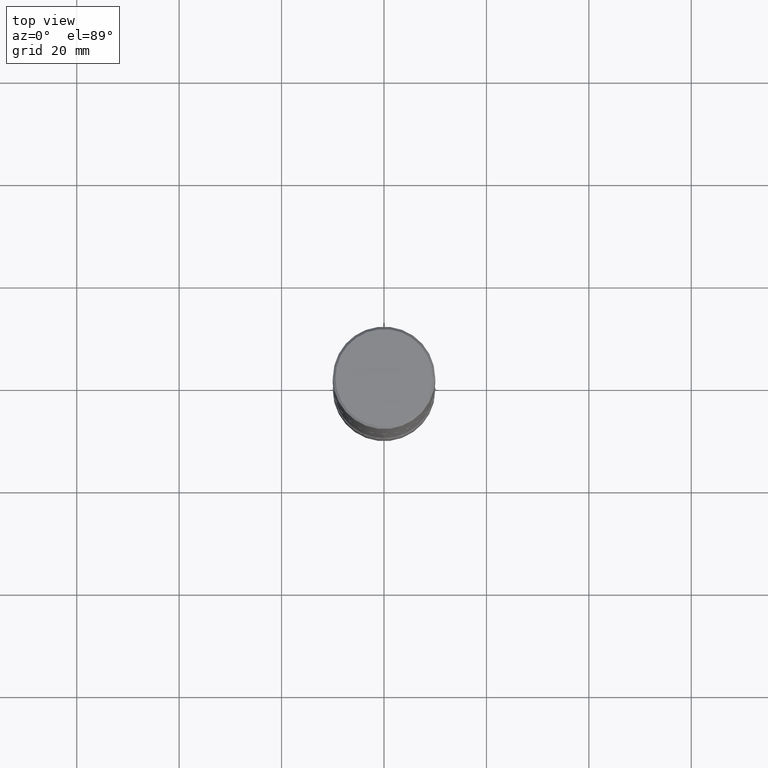
[diagram: clean part render]
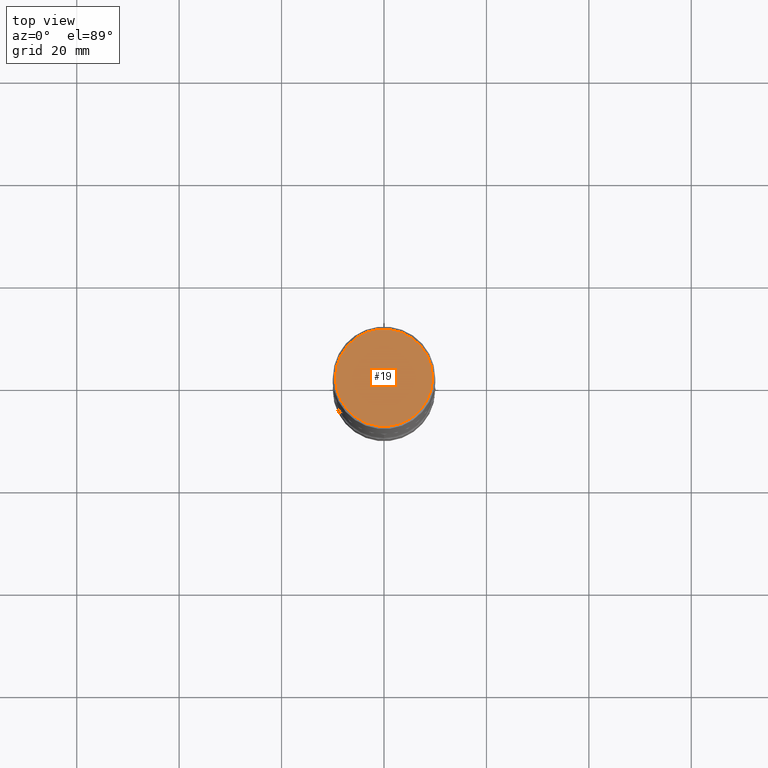
[diagram: same view with one face highlighted and labeled with its STEP entity id]
A machine part, top view. The second image highlights one B-rep face of the part: STEP entity #19.
In plain terms, the highlighted planar face has unit normal (0, -0, -1).
Its self-contained STEP definition (entity closure, byte-faithful):
#1 = AXIS2_PLACEMENT_3D ( 'NONE', #375, #271, #474 ) ;
#18 = CARTESIAN_POINT ( 'NONE',  ( -2.087702828670439639E-46, 2.980686340760894400E-32, 8.537024980200822558E-18 ) ) ;
#19 = ADVANCED_FACE ( 'NONE', ( #399 ), #501, .F. ) ;
#24 = EDGE_CURVE ( 'NONE', #26, #469, #70, .T. ) ;
#26 = VERTEX_POINT ( 'NONE', #142 ) ;
#70 = CIRCLE ( 'NONE', #466, 0.3736999999999999766 ) ;
#74 = ORIENTED_EDGE ( 'NONE', *, *, #24, .T. ) ;
#116 = DIRECTION ( 'NONE',  ( 1.000000000000000000, -6.982962677686266711E-15, 4.876212485538975679E-29 ) ) ;
#118 = EDGE_CURVE ( 'NONE', #469, #26, #415, .T. ) ;
#138 = CARTESIAN_POINT ( 'NONE',  ( -2.087702828670439639E-46, 2.980686340760894400E-32, 8.537024980200822558E-18 ) ) ;
#142 = CARTESIAN_POINT ( 'NONE',  ( -0.3736999999999999766, 2.644447966039789058E-15, 8.537024980182450727E-18 ) ) ;
#183 = DIRECTION ( 'NONE',  ( -2.445468806185136597E-29, 3.491481338843145583E-15, 1.000000000000000000 ) ) ;
#256 = ORIENTED_EDGE ( 'NONE', *, *, #118, .T. ) ;
#271 = DIRECTION ( 'NONE',  ( 2.438088387897960049E-29, -3.491481338843145188E-15, -1.000000000000000000 ) ) ;
#296 = DIRECTION ( 'NONE',  ( 1.000000000000000000, -6.982962677686266711E-15, 4.876212485538975679E-29 ) ) ;
#375 = CARTESIAN_POINT ( 'NONE',  ( 2.609533152651357409E-15, 0.3736999999999999766, -1.300498063835583011E-15 ) ) ;
#399 = FACE_OUTER_BOUND ( 'NONE', #524, .T. ) ;
#415 = CIRCLE ( 'NONE', #467, 0.3736999999999999766 ) ;
#441 = CARTESIAN_POINT ( 'NONE',  ( 0.3736999999999999766, -2.667287895133368359E-15, 8.537024980219274507E-18 ) ) ;
#466 = AXIS2_PLACEMENT_3D ( 'NONE', #18, #528, #116 ) ;
#467 = AXIS2_PLACEMENT_3D ( 'NONE', #138, #183, #296 ) ;
#469 = VERTEX_POINT ( 'NONE', #441 ) ;
#474 = DIRECTION ( 'NONE',  ( -1.000000000000000000, 6.982962677686265922E-15, -4.876176775795935793E-29 ) ) ;
#501 = PLANE ( 'NONE',  #1 ) ;
#524 = EDGE_LOOP ( 'NONE', ( #74, #256 ) ) ;
#528 = DIRECTION ( 'NONE',  ( -2.445468806185136597E-29, 3.491481338843145583E-15, 1.000000000000000000 ) ) ;